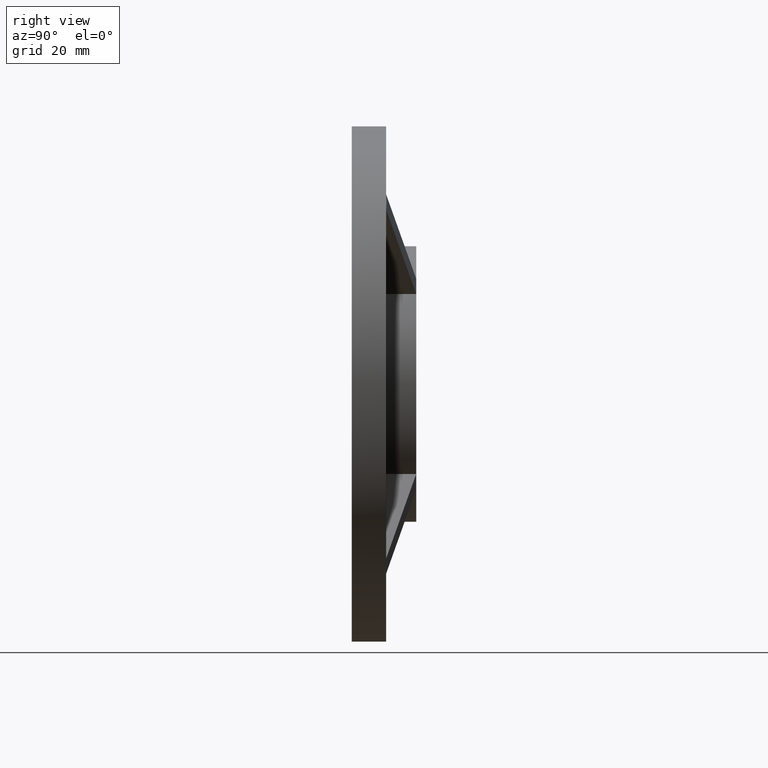
[diagram: clean part render]
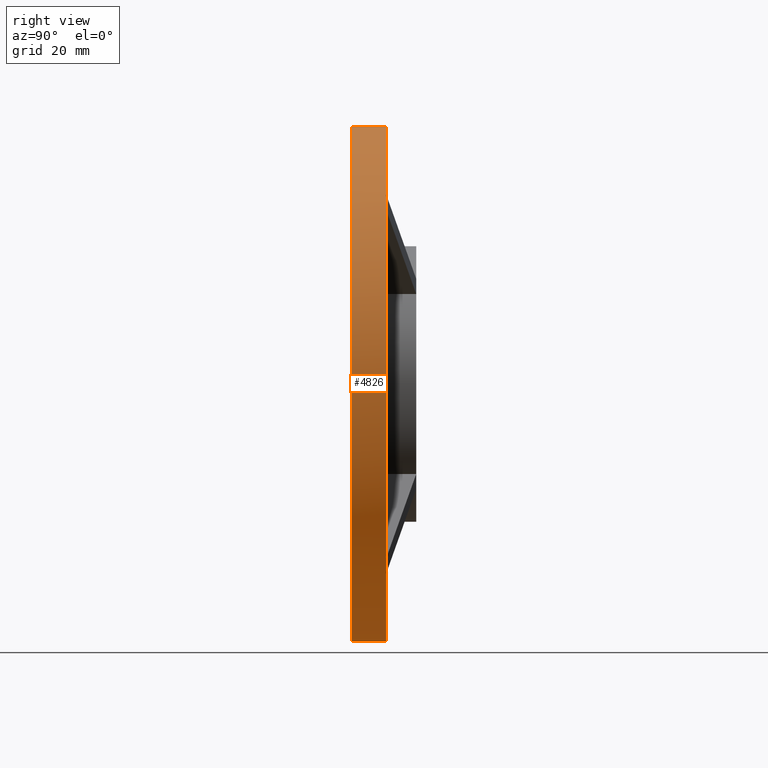
[diagram: same view with one face highlighted and labeled with its STEP entity id]
A machine part, right view. The second image highlights one B-rep face of the part: STEP entity #4826.
In plain terms, the highlighted cylindrical surface (bore or boss wall) has radius 60 mm, axis along (-0, -1, -0).
Its self-contained STEP definition (entity closure, byte-faithful):
#6 = VERTEX_POINT ( 'NONE', #8617 ) ;
#251 = CARTESIAN_POINT ( 'NONE',  ( 40.62179544156659006, 8.000000000000000000, -44.15732934749924965 ) ) ;
#283 = ORIENTED_EDGE ( 'NONE', *, *, #2156, .T. ) ;
#974 = VERTEX_POINT ( 'NONE', #1558 ) ;
#1015 = CARTESIAN_POINT ( 'NONE',  ( 41.84909847678742523, 8.075857219194064740, 43.02829247914124267 ) ) ;
#1558 = CARTESIAN_POINT ( 'NONE',  ( -40.62179544156660427, 8.000000000000000000, 44.15732934749922123 ) ) ;
#2154 = CYLINDRICAL_SURFACE ( 'NONE', #5527, 60.00000000000000000 ) ;
#2156 = EDGE_CURVE ( 'NONE', #6, #8556, #11483, .T. ) ;
#2247 = DIRECTION ( 'NONE',  ( 0.000000000000000000, 1.000000000000000000, 0.000000000000000000 ) ) ;
#2255 = DIRECTION ( 'NONE',  ( 0.000000000000000000, 0.000000000000000000, -1.000000000000000000 ) ) ;
#2412 =( BOUNDED_CURVE ( )  B_SPLINE_CURVE ( 3, ( #6231, #5254, #1015, #9259 ),
 .UNSPECIFIED., .F., .T. ) 
 B_SPLINE_CURVE_WITH_KNOTS ( ( 4, 4 ),
 ( 3.099913921167214870, 3.183271386012369142 ),
 .UNSPECIFIED. ) 
 CURVE ( )  GEOMETRIC_REPRESENTATION_ITEM ( )  RATIONAL_B_SPLINE_CURVE ( ( 1.000000000000000000, 0.9994210449045444200, 0.9994210449045444200, 1.000000000000000000 ) ) 
 REPRESENTATION_ITEM ( '' )  );
#2507 = VERTEX_POINT ( 'NONE', #9362 ) ;
#2557 = VERTEX_POINT ( 'NONE', #4230 ) ;
#2746 = CARTESIAN_POINT ( 'NONE',  ( 0.000000000000000000, 0.000000000000000000, 60.00000000000000000 ) ) ;
#2799 = CIRCLE ( 'NONE', #8009, 60.00000000000000000 ) ;
#2866 = DIRECTION ( 'NONE',  ( 0.000000000000000000, 0.000000000000000000, 1.000000000000000000 ) ) ;
#3065 = DIRECTION ( 'NONE',  ( 0.000000000000000000, 1.000000000000000000, 0.000000000000000000 ) ) ;
#3216 = CARTESIAN_POINT ( 'NONE',  ( -44.15732934749923544, 8.000000000000003553, -40.62179544156661137 ) ) ;
#3338 = CARTESIAN_POINT ( 'NONE',  ( -43.02829247914117161, 8.075857219194054082, -41.84909847678748918 ) ) ;
#3366 = CARTESIAN_POINT ( 'NONE',  ( 0.000000000000000000, 8.000000000000000000, 0.000000000000000000 ) ) ;
#3426 = CIRCLE ( 'NONE', #12771, 60.00000000000000000 ) ;
#3568 = CARTESIAN_POINT ( 'NONE',  ( 0.000000000000000000, 8.000000000000000000, 0.000000000000000000 ) ) ;
#3579 = AXIS2_PLACEMENT_3D ( 'NONE', #3366, #2247, #11438 ) ;
#3979 = VERTEX_POINT ( 'NONE', #2746 ) ;
#4063 = EDGE_LOOP ( 'NONE', ( #4821, #9675, #7373, #283, #11588, #9521, #4833, #11814 ) ) ;
#4230 = CARTESIAN_POINT ( 'NONE',  ( -44.15732934749887306, 8.000000000000000000, 40.62179544156700217 ) ) ;
#4821 = ORIENTED_EDGE ( 'NONE', *, *, #5773, .F. ) ;
#4826 = ADVANCED_FACE ( 'NONE', ( #13001, #6321 ), #2154, .T. ) ;
#4833 = ORIENTED_EDGE ( 'NONE', *, *, #5710, .F. ) ;
#5254 = CARTESIAN_POINT ( 'NONE',  ( 43.02829247914117161, 8.075857219194054082, 41.84909847678748918 ) ) ;
#5527 = AXIS2_PLACEMENT_3D ( 'NONE', #6332, #8382, #2255 ) ;
#5589 = CARTESIAN_POINT ( 'NONE',  ( 0.000000000000000000, 8.000000000000000000, 0.000000000000000000 ) ) ;
#5710 = EDGE_CURVE ( 'NONE', #2507, #13072, #3426, .T. ) ;
#5773 = EDGE_CURVE ( 'NONE', #974, #5902, #2799, .T. ) ;
#5902 = VERTEX_POINT ( 'NONE', #10318 ) ;
#6181 =( BOUNDED_CURVE ( )  B_SPLINE_CURVE ( 3, ( #11960, #9056, #11081, #6943 ),
 .UNSPECIFIED., .F., .F. ) 
 B_SPLINE_CURVE_WITH_KNOTS ( ( 4, 4 ),
 ( 3.099913921167217978, 3.183271386012369142 ),
 .UNSPECIFIED. ) 
 CURVE ( )  GEOMETRIC_REPRESENTATION_ITEM ( )  RATIONAL_B_SPLINE_CURVE ( ( 1.000000000000000000, 0.9994210449045444200, 0.9994210449045444200, 1.000000000000000000 ) ) 
 REPRESENTATION_ITEM ( '' )  );
#6231 = CARTESIAN_POINT ( 'NONE',  ( 44.15732934749923544, 7.999999999999998224, 40.62179544156661848 ) ) ;
#6321 = FACE_OUTER_BOUND ( 'NONE', #7901, .T. ) ;
#6332 = CARTESIAN_POINT ( 'NONE',  ( 0.000000000000000000, 8.000000000000000000, 0.000000000000000000 ) ) ;
#6543 = EDGE_CURVE ( 'NONE', #974, #2557, #13104, .T. ) ;
#6609 = CARTESIAN_POINT ( 'NONE',  ( -40.62179544156660427, 8.000000000000000000, 44.15732934749922123 ) ) ;
#6943 = CARTESIAN_POINT ( 'NONE',  ( 44.15732934749915728, 8.000000000000000000, -40.62179544156668953 ) ) ;
#7134 = EDGE_CURVE ( 'NONE', #3979, #3979, #12965, .T. ) ;
#7349 = CIRCLE ( 'NONE', #3579, 60.00000000000000000 ) ;
#7373 = ORIENTED_EDGE ( 'NONE', *, *, #11933, .F. ) ;
#7416 = AXIS2_PLACEMENT_3D ( 'NONE', #10050, #13102, #2866 ) ;
#7638 = CARTESIAN_POINT ( 'NONE',  ( -41.84909847678734707, 8.075857219194052306, 43.02829247914132083 ) ) ;
#7731 = EDGE_CURVE ( 'NONE', #9179, #8556, #10445, .T. ) ;
#7901 = EDGE_LOOP ( 'NONE', ( #8877 ) ) ;
#7930 = EDGE_CURVE ( 'NONE', #9179, #13072, #6181, .T. ) ;
#8009 = AXIS2_PLACEMENT_3D ( 'NONE', #3568, #12740, #11762 ) ;
#8382 = DIRECTION ( 'NONE',  ( -0.000000000000000000, -1.000000000000000000, -0.000000000000000000 ) ) ;
#8556 = VERTEX_POINT ( 'NONE', #11414 ) ;
#8617 = CARTESIAN_POINT ( 'NONE',  ( -44.15732934749923544, 8.000000000000003553, -40.62179544156661137 ) ) ;
#8708 = EDGE_CURVE ( 'NONE', #2507, #5902, #2412, .T. ) ;
#8877 = ORIENTED_EDGE ( 'NONE', *, *, #7134, .T. ) ;
#8938 = CARTESIAN_POINT ( 'NONE',  ( -43.02829247914094424, 8.075857219194054082, 41.84909847678773076 ) ) ;
#9056 = CARTESIAN_POINT ( 'NONE',  ( 41.84909847678742523, 8.075857219194045200, -43.02829247914123556 ) ) ;
#9179 = VERTEX_POINT ( 'NONE', #251 ) ;
#9235 = DIRECTION ( 'NONE',  ( 0.000000000000000000, 0.000000000000000000, 1.000000000000000000 ) ) ;
#9259 = CARTESIAN_POINT ( 'NONE',  ( 40.62179544156653321, 8.000000000000000000, 44.15732934749929228 ) ) ;
#9352 = CARTESIAN_POINT ( 'NONE',  ( 44.15732934749915728, 8.000000000000000000, -40.62179544156668953 ) ) ;
#9362 = CARTESIAN_POINT ( 'NONE',  ( 44.15732934749923544, 7.999999999999998224, 40.62179544156661848 ) ) ;
#9521 = ORIENTED_EDGE ( 'NONE', *, *, #7930, .T. ) ;
#9675 = ORIENTED_EDGE ( 'NONE', *, *, #6543, .T. ) ;
#9734 = AXIS2_PLACEMENT_3D ( 'NONE', #13085, #3065, #9235 ) ;
#10050 = CARTESIAN_POINT ( 'NONE',  ( 0.000000000000000000, 0.000000000000000000, 0.000000000000000000 ) ) ;
#10318 = CARTESIAN_POINT ( 'NONE',  ( 40.62179544156653321, 8.000000000000000000, 44.15732934749929228 ) ) ;
#10353 = CARTESIAN_POINT ( 'NONE',  ( -41.84909847678742523, 8.075857219194064740, -43.02829247914124267 ) ) ;
#10445 = CIRCLE ( 'NONE', #9734, 60.00000000000000000 ) ;
#10486 = CARTESIAN_POINT ( 'NONE',  ( -40.62179544156653321, 8.000000000000000000, -44.15732934749929228 ) ) ;
#11081 = CARTESIAN_POINT ( 'NONE',  ( 43.02829247914112898, 8.075857219194046976, -41.84909847678752470 ) ) ;
#11414 = CARTESIAN_POINT ( 'NONE',  ( -40.62179544156653321, 8.000000000000000000, -44.15732934749929228 ) ) ;
#11438 = DIRECTION ( 'NONE',  ( 0.000000000000000000, 0.000000000000000000, 1.000000000000000000 ) ) ;
#11483 =( BOUNDED_CURVE ( )  B_SPLINE_CURVE ( 3, ( #3216, #3338, #10353, #10486 ),
 .UNSPECIFIED., .F., .T. ) 
 B_SPLINE_CURVE_WITH_KNOTS ( ( 4, 4 ),
 ( 3.099913921167214870, 3.183271386012369142 ),
 .UNSPECIFIED. ) 
 CURVE ( )  GEOMETRIC_REPRESENTATION_ITEM ( )  RATIONAL_B_SPLINE_CURVE ( ( 1.000000000000000000, 0.9994210449045444200, 0.9994210449045444200, 1.000000000000000000 ) ) 
 REPRESENTATION_ITEM ( '' )  );
#11588 = ORIENTED_EDGE ( 'NONE', *, *, #7731, .F. ) ;
#11673 = DIRECTION ( 'NONE',  ( 0.000000000000000000, 0.000000000000000000, 1.000000000000000000 ) ) ;
#11762 = DIRECTION ( 'NONE',  ( 0.000000000000000000, 0.000000000000000000, 1.000000000000000000 ) ) ;
#11814 = ORIENTED_EDGE ( 'NONE', *, *, #8708, .T. ) ;
#11933 = EDGE_CURVE ( 'NONE', #6, #2557, #7349, .T. ) ;
#11960 = CARTESIAN_POINT ( 'NONE',  ( 40.62179544156659006, 8.000000000000000000, -44.15732934749924965 ) ) ;
#12012 = CARTESIAN_POINT ( 'NONE',  ( -44.15732934749887306, 8.000000000000000000, 40.62179544156700217 ) ) ;
#12700 = DIRECTION ( 'NONE',  ( 0.000000000000000000, 1.000000000000000000, 0.000000000000000000 ) ) ;
#12740 = DIRECTION ( 'NONE',  ( 0.000000000000000000, 1.000000000000000000, 0.000000000000000000 ) ) ;
#12771 = AXIS2_PLACEMENT_3D ( 'NONE', #5589, #12700, #11673 ) ;
#12965 = CIRCLE ( 'NONE', #7416, 60.00000000000000000 ) ;
#13001 = FACE_OUTER_BOUND ( 'NONE', #4063, .T. ) ;
#13072 = VERTEX_POINT ( 'NONE', #9352 ) ;
#13085 = CARTESIAN_POINT ( 'NONE',  ( 0.000000000000000000, 8.000000000000000000, 0.000000000000000000 ) ) ;
#13102 = DIRECTION ( 'NONE',  ( 0.000000000000000000, 1.000000000000000000, 0.000000000000000000 ) ) ;
#13104 =( BOUNDED_CURVE ( )  B_SPLINE_CURVE ( 3, ( #6609, #7638, #8938, #12012 ),
 .UNSPECIFIED., .F., .T. ) 
 B_SPLINE_CURVE_WITH_KNOTS ( ( 4, 4 ),
 ( 3.099913921167225528, 3.183271386012369142 ),
 .UNSPECIFIED. ) 
 CURVE ( )  GEOMETRIC_REPRESENTATION_ITEM ( )  RATIONAL_B_SPLINE_CURVE ( ( 1.000000000000000000, 0.9994210449045445310, 0.9994210449045445310, 1.000000000000000000 ) ) 
 REPRESENTATION_ITEM ( '' )  );